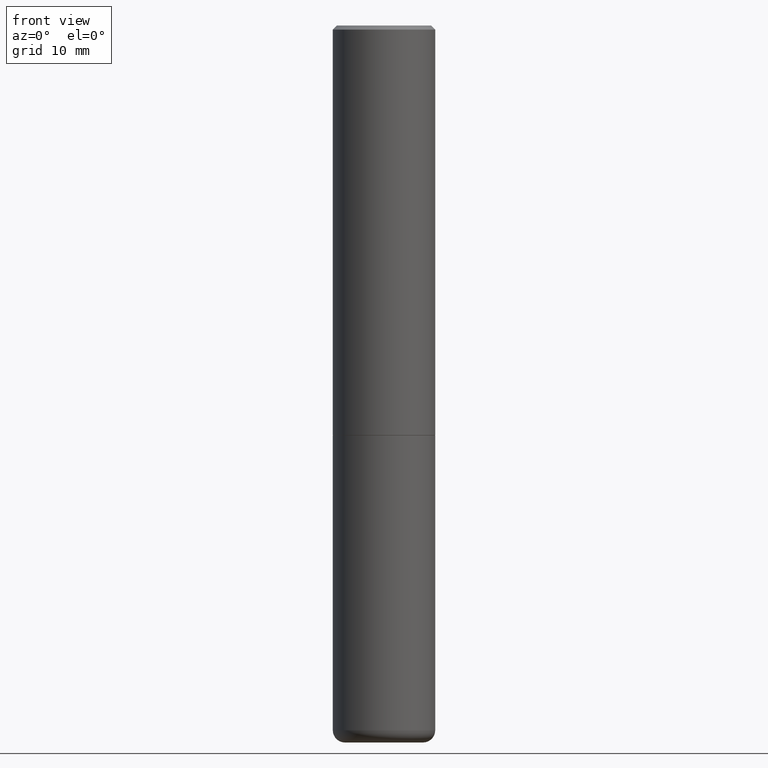
[diagram: clean part render]
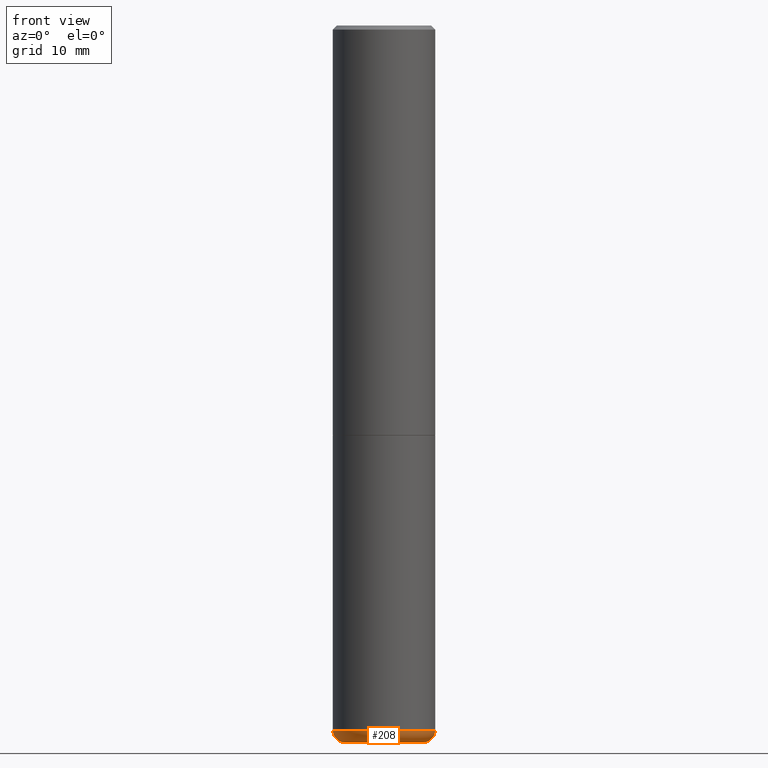
[diagram: same view with one face highlighted and labeled with its STEP entity id]
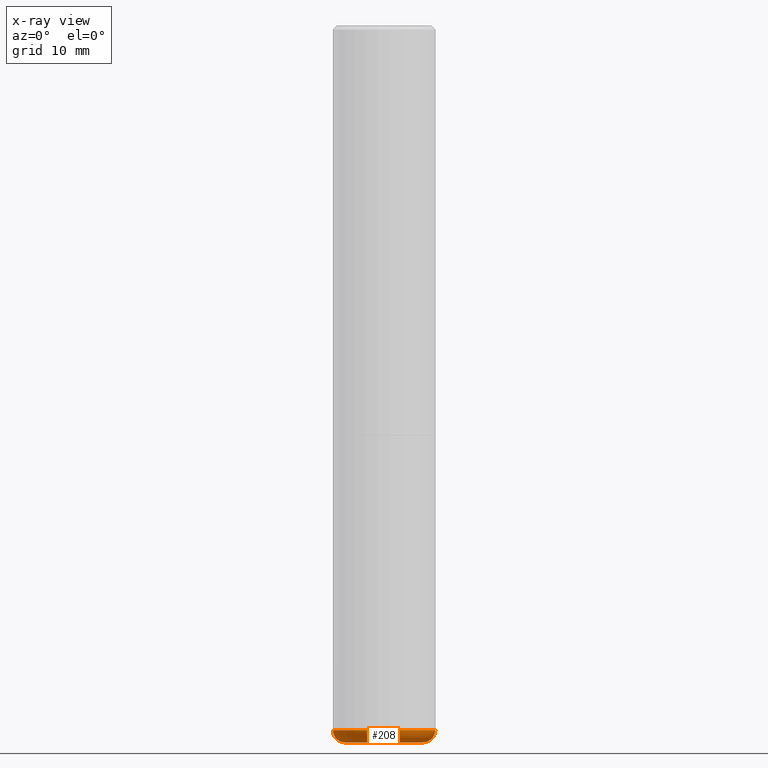
[diagram: x-ray of the same camera — body ghosted, the highlighted face saturated]
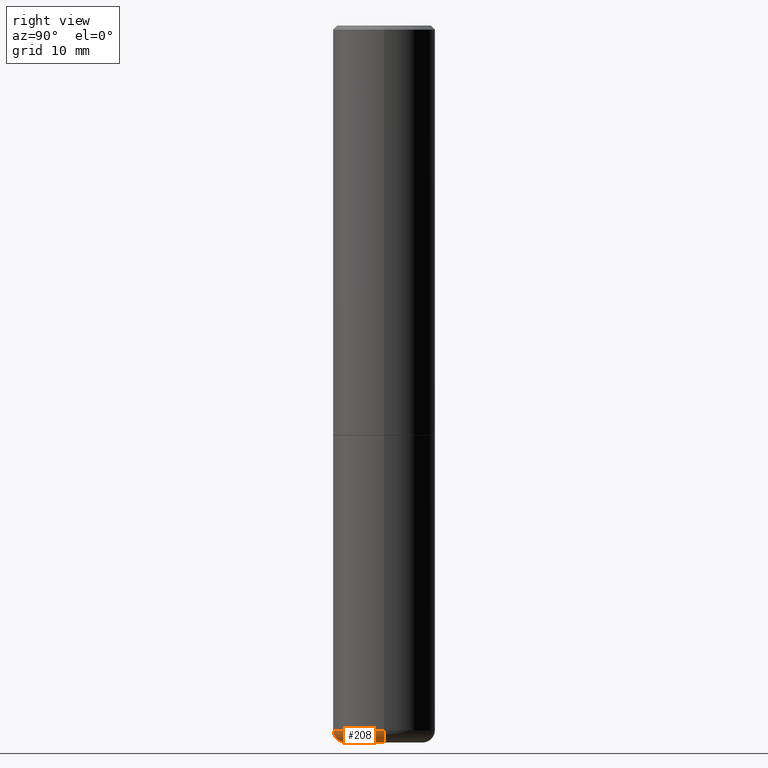
[diagram: same view with one face highlighted and labeled with its STEP entity id]
A machine part, front view. The second image highlights one B-rep face of the part: STEP entity #208.
The next image is the same camera in x-ray: the body ghosted, the highlighted face saturated — about 0% of this face is hidden behind the body in this view.
A second angle (right view) of the same face is appended — the face is thin or edge-on in the first view.
In plain terms, the highlighted toroidal blend (fillet) surface has major radius 4.826 mm and minor (blend) radius 1.524 mm.
Its self-contained STEP definition (entity closure, byte-faithful):
#11 = ORIENTED_EDGE ( 'NONE', *, *, #43, .F. ) ;
#16 = ORIENTED_EDGE ( 'NONE', *, *, #331, .T. ) ;
#33 = DIRECTION ( 'NONE',  ( 1.000000000000000000, -6.982962677686265133E-15, 4.883557194083112340E-29 ) ) ;
#43 = EDGE_CURVE ( 'NONE', #267, #109, #161, .T. ) ;
#51 = EDGE_CURVE ( 'NONE', #109, #282, #321, .T. ) ;
#50 = DIRECTION ( 'NONE',  ( -2.445468806185136597E-29, 3.491481338843145583E-15, 1.000000000000000000 ) ) ;
#85 = CIRCLE ( 'NONE', #169, 0.05999999999999994227 ) ;
#87 = DIRECTION ( 'NONE',  ( -1.000000000000000000, 7.105427357600997914E-15, 0.000000000000000000 ) ) ;
#92 = CARTESIAN_POINT ( 'NONE',  ( 0.2499999999999999722, -1.375643647504198770E-14, -3.439999999999999947 ) ) ;
#93 = DIRECTION ( 'NONE',  ( -2.445468806185136597E-29, 3.491481338843145583E-15, 1.000000000000000000 ) ) ;
#94 = DIRECTION ( 'NONE',  ( 1.000000000000000000, -6.982962677686273021E-15, 0.000000000000000000 ) ) ;
#96 = DIRECTION ( 'NONE',  ( 1.000000000000000000, -6.982962677686274599E-15, 0.000000000000000000 ) ) ;
#109 = VERTEX_POINT ( 'NONE', #279 ) ;
#122 = EDGE_CURVE ( 'NONE', #212, #282, #85, .T. ) ;
#138 = CARTESIAN_POINT ( 'NONE',  ( 8.559140821647976968E-29, -1.222018468595100934E-14, -3.500000000000000000 ) ) ;
#140 = CARTESIAN_POINT ( 'NONE',  ( -0.1899999999999999745, -1.055224622711349575E-14, -3.500000000000000000 ) ) ;
#145 = EDGE_LOOP ( 'NONE', ( #11, #16, #395, #188 ) ) ;
#147 = AXIS2_PLACEMENT_3D ( 'NONE', #222, #50, #155 ) ;
#149 = CARTESIAN_POINT ( 'NONE',  ( -0.1899999999999999745, -1.066066460767623105E-14, -3.439999999999999947 ) ) ;
#155 = DIRECTION ( 'NONE',  ( 1.000000000000000000, -6.982962677686270655E-15, 0.000000000000000000 ) ) ;
#161 = CIRCLE ( 'NONE', #206, 0.05999999999999994227 ) ;
#169 = AXIS2_PLACEMENT_3D ( 'NONE', #197, #292, #96 ) ;
#188 = ORIENTED_EDGE ( 'NONE', *, *, #51, .F. ) ;
#197 = CARTESIAN_POINT ( 'NONE',  ( 0.1899999999999999745, -1.333745871438081265E-14, -3.439999999999999947 ) ) ;
#206 = AXIS2_PLACEMENT_3D ( 'NONE', #149, #415, #87 ) ;
#208 = ADVANCED_FACE ( 'NONE', ( #320 ), #288, .T. ) ;
#212 = VERTEX_POINT ( 'NONE', #384 ) ;
#219 = AXIS2_PLACEMENT_3D ( 'NONE', #138, #257, #94 ) ;
#222 = CARTESIAN_POINT ( 'NONE',  ( 8.412412693276869938E-29, -1.201069580562042103E-14, -3.439999999999999947 ) ) ;
#252 = CARTESIAN_POINT ( 'NONE',  ( 8.412412693276869938E-29, -1.201069580562042103E-14, -3.439999999999999947 ) ) ;
#257 = DIRECTION ( 'NONE',  ( -2.445468806185136597E-29, 3.491481338843145583E-15, 1.000000000000000000 ) ) ;
#267 = VERTEX_POINT ( 'NONE', #140 ) ;
#279 = CARTESIAN_POINT ( 'NONE',  ( -0.2499999999999999722, -1.023433896622016898E-14, -3.439999999999999947 ) ) ;
#282 = VERTEX_POINT ( 'NONE', #92 ) ;
#288 = TOROIDAL_SURFACE ( 'NONE', #349, 0.1899999999999999745, 0.05999999999999995615 ) ;
#292 = DIRECTION ( 'NONE',  ( -6.982962677686266711E-15, -1.000000000000000000, 3.491481338843145583E-15 ) ) ;
#320 = FACE_OUTER_BOUND ( 'NONE', #145, .T. ) ;
#321 = CIRCLE ( 'NONE', #147, 0.2500000000000000000 ) ;
#331 = EDGE_CURVE ( 'NONE', #267, #212, #404, .T. ) ;
#349 = AXIS2_PLACEMENT_3D ( 'NONE', #252, #93, #33 ) ;
#384 = CARTESIAN_POINT ( 'NONE',  ( 0.1899999999999999745, -1.354694759471140096E-14, -3.500000000000000000 ) ) ;
#395 = ORIENTED_EDGE ( 'NONE', *, *, #122, .T. ) ;
#404 = CIRCLE ( 'NONE', #219, 0.1899999999999999745 ) ;
#415 = DIRECTION ( 'NONE',  ( 7.105427357601001859E-15, 1.000000000000000000, -3.491481338843145583E-15 ) ) ;